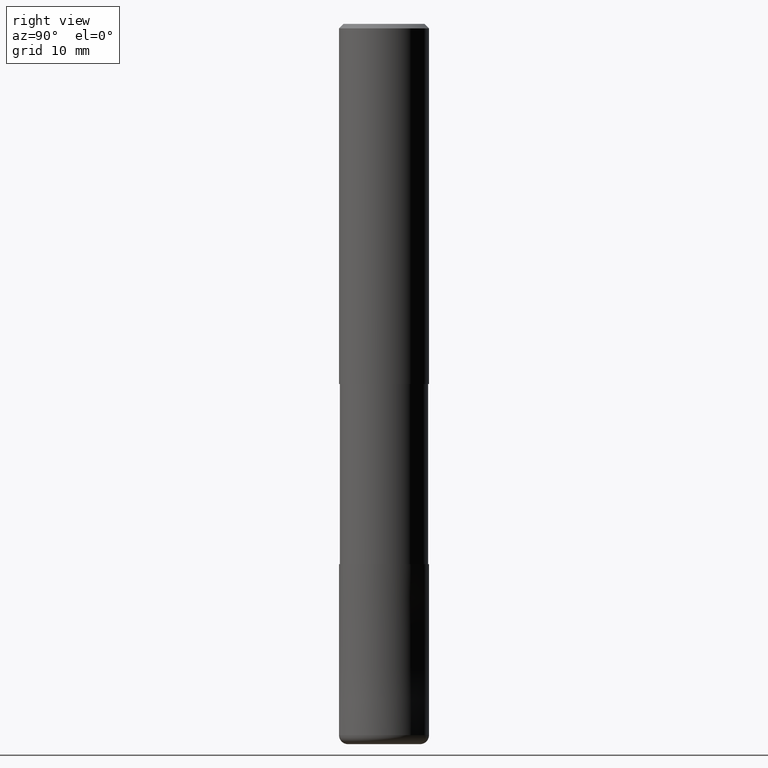
[diagram: clean part render]
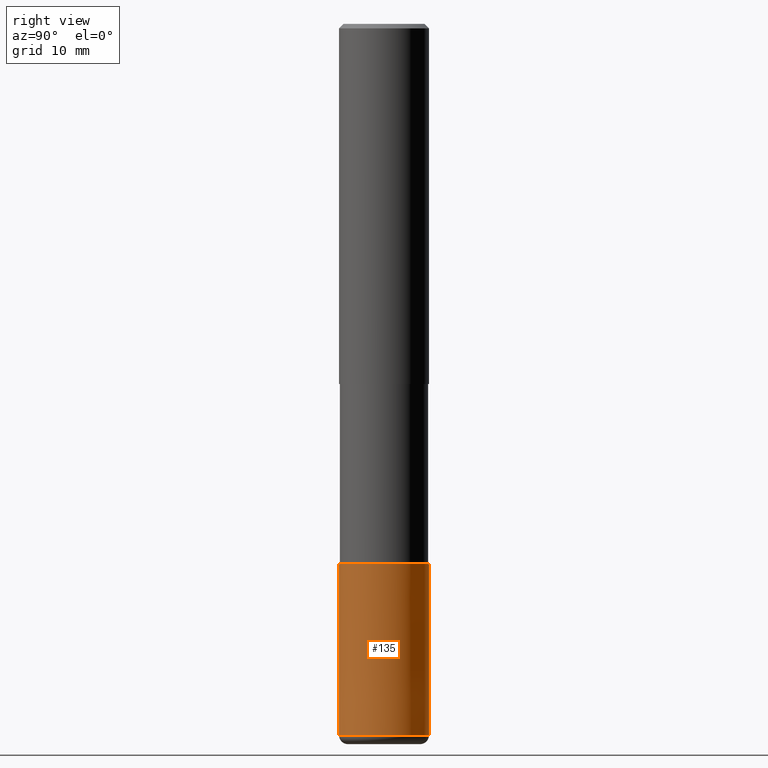
[diagram: same view with one face highlighted and labeled with its STEP entity id]
A machine part, right view. The second image highlights one B-rep face of the part: STEP entity #135.
In plain terms, the highlighted conical surface has half-angle 0 deg.
Its self-contained STEP definition (entity closure, byte-faithful):
#119=VERTEX_POINT('',#307);
#135=ADVANCED_FACE('',(#324),#325,.T.);
#149=EDGE_CURVE('',#165,#119,#342,.T.);
#155=VERTEX_POINT('',#348);
#159=EDGE_CURVE('',#231,#155,#352,.T.);
#165=VERTEX_POINT('',#358);
#181=EDGE_CURVE('',#155,#119,#376,.T.);
#191=EDGE_CURVE('',#165,#231,#388,.T.);
#231=VERTEX_POINT('',#432);
#307=CARTESIAN_POINT('',(6.1229093084765E-016,-4.9999,-60.0));
#324=FACE_OUTER_BOUND('',#533,.T.);
#325=CONICAL_SURFACE('',#534,4.99995,5.26315789467598E-006);
#342=CIRCLE('',#553,4.9999);
#348=CARTESIAN_POINT('',(6.12303176911188E-016,-5.0,-79.0));
#352=CIRCLE('',#566,5.0);
#358=CARTESIAN_POINT('',(0.0,4.9999,-60.0));
#376=LINE('',#599,#600);
#388=LINE('',#614,#615);
#432=CARTESIAN_POINT('',(0.0,5.0,-79.0));
#533=EDGE_LOOP('',(#777,#778,#779,#780));
#534=AXIS2_PLACEMENT_3D('',#781,#782,#783);
#553=AXIS2_PLACEMENT_3D('',#803,#804,#805);
#566=AXIS2_PLACEMENT_3D('',#812,#813,#814);
#599=CARTESIAN_POINT('',(6.12297053879419E-016,-4.99995,-69.5));
#600=VECTOR('',#843,1.0);
#614=CARTESIAN_POINT('',(-6.12297053879419E-016,4.99995,-69.5));
#615=VECTOR('',#859,1.0);
#777=ORIENTED_EDGE('',*,*,#191,.F.);
#778=ORIENTED_EDGE('',*,*,#149,.T.);
#779=ORIENTED_EDGE('',*,*,#181,.F.);
#780=ORIENTED_EDGE('',*,*,#159,.F.);
#781=CARTESIAN_POINT('',(0.0,0.0,-69.5));
#782=DIRECTION('',(0.0,-0.0,-1.0));
#783=DIRECTION('',(0.0,1.0,0.0));
#803=CARTESIAN_POINT('',(0.0,0.0,-60.0));
#804=DIRECTION('',(0.0,0.0,-1.0));
#805=DIRECTION('',(0.0,1.0,0.0));
#812=CARTESIAN_POINT('',(0.0,0.0,-79.0));
#813=DIRECTION('',(0.0,0.0,-1.0));
#814=DIRECTION('',(0.0,1.0,0.0));
#843=DIRECTION('',(-6.44529659896085E-022,5.26315789465168E-006,0.99999999998615));
#859=DIRECTION('',(-6.44529659896085E-022,5.26315789465168E-006,-0.99999999998615));